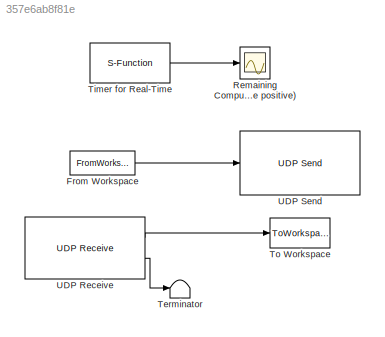
MODEL slx_357e6ab8f81e
KIND model
CONFIG AbsTol = 1e-6
CONFIG EnableMultiTasking = off
CONFIG FixedStep = auto
CONFIG MaxStep = auto
CONFIG MinStep = auto
CONFIG RelTol = 1e-3
CONFIG SampleTimeConstraint = Unconstrained
CONFIG Solver = ode5
CONFIG SolverName = ode5
CONFIG StartTime = 0.0
CONFIG StopTime = 41
BLOCK [FromWorkspace] From Workspace
  OutDataTypeStr = single
  SampleTime = 0.005
  VariableName = trajectory
  ZeroCross = on
BLOCK [Scope] Remaining Computation Time (must be positive)
  Floating = off
  NumInputPorts = 1
  Ports = [1]
  ScopeSpecificationString = Simulink.scopes.TimeScopeBlockCfg('CurrentConfiguration', extmgr.ConfigurationSet(extmgr.Configuration('Core','General UI',true),extmgr.Configuration('Core','Source UI',true),extmgr.Configuration('Sources','WiredSimulink',true,'DataLoggingVariableName','ScopeData1','DataLoggingSaveFormat','StructureWithTime','DataLoggingLimitDataPoints',true,'DataLoggingDecimation','1','DataLoggingDecimateData',tr...<+1722ch>
BLOCK [Terminator] Terminator
BLOCK [S-Function] Timer for Real-Time
  EnableBusSupport = off
  FunctionName = sfun_rttime
  Parameters = 1
  Ports = [0, 1]
  SFcnIsStateOwnerBlock = off
  SFunctionDeploymentMode = off
BLOCK [ToWorkspace] To Workspace
  FixptAsFi = on
  MaxDataPoints = inf
  Ports = [1]
  SampleTime = -1
  Save2DSignal = 2-D array (concatenate along first dimension)
  SaveFormat = Structure With Time
  VariableName = quadrotor
BLOCK [Reference] UDP Receive  REF=parrotlib/UDP Receive
  Ports = [0, 2]
  SourceBlock = parrotlib/UDP Receive
  SourceProductBaseCode = MINIDRONES
  SourceProductName = Simulink Support Package for PARROT Minidrones
  SourceType = UDP Receive
BLOCK [Reference] UDP Send  REF=parrotlib/UDP Send
  Ports = [1]
  SourceBlock = parrotlib/UDP Send
  SourceProductBaseCode = MINIDRONES
  SourceProductName = Simulink Support Package for PARROT Minidrones
  SourceType = UDP Send
LINE From Workspace:1 -> UDP Send:1
LINE Timer for Real-Time:1 -> Remaining Computation Time (must be positive):1
LINE UDP Receive:1 -> To Workspace:1
LINE UDP Receive:2 -> Terminator:1
